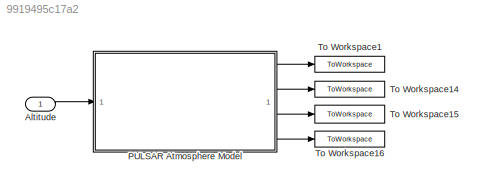
MODEL slx_9919495c17a2
KIND model
CONFIG AbsTol = auto
CONFIG EnableMultiTasking = off
CONFIG FixedStep = auto
CONFIG MaxStep = auto
CONFIG MinStep = auto
CONFIG RelTol = 1e-3
CONFIG SampleTimeConstraint = Unconstrained
CONFIG SolverName = VariableStepAuto
CONFIG StartTime = 0.0
CONFIG StopTime = 10.0
BLOCK [Inport] Altitude
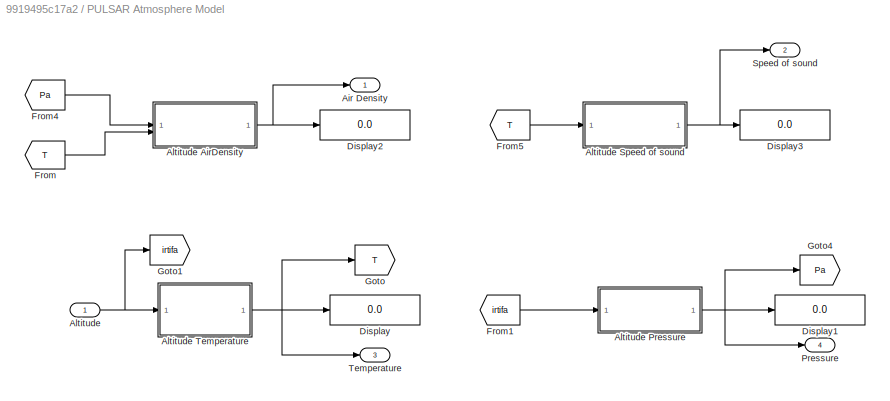
BLOCK [SubSystem] PULSAR Atmosphere Model
BLOCK [Outport] PULSAR Atmosphere Model/Air Density
BLOCK [Inport] PULSAR Atmosphere Model/Altitude
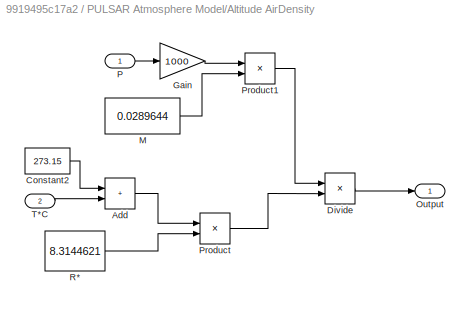
BLOCK [SubSystem] PULSAR Atmosphere Model/Altitude AirDensity
BLOCK [Sum] PULSAR Atmosphere Model/Altitude AirDensity/Add
  IconShape = rectangular
BLOCK [Constant] PULSAR Atmosphere Model/Altitude AirDensity/Constant2
  Value = 273.15
BLOCK [Product] PULSAR Atmosphere Model/Altitude AirDensity/Divide
  Inputs = */
BLOCK [Gain] PULSAR Atmosphere Model/Altitude AirDensity/Gain
  Gain = 1000
BLOCK [Constant] PULSAR Atmosphere Model/Altitude AirDensity/M
  Value = 0.0289644
BLOCK [Outport] PULSAR Atmosphere Model/Altitude AirDensity/Output
BLOCK [Inport] PULSAR Atmosphere Model/Altitude AirDensity/P
BLOCK [Product] PULSAR Atmosphere Model/Altitude AirDensity/Product
BLOCK [Product] PULSAR Atmosphere Model/Altitude AirDensity/Product1
BLOCK [Constant] PULSAR Atmosphere Model/Altitude AirDensity/R*
  Value = 8.3144621
BLOCK [Inport] PULSAR Atmosphere Model/Altitude AirDensity/T*C
  Port = 2
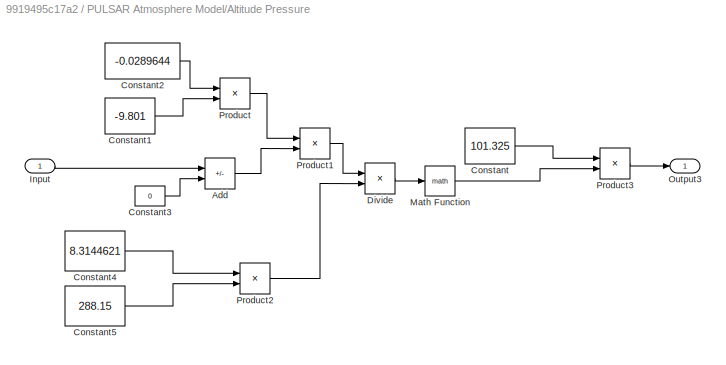
BLOCK [SubSystem] PULSAR Atmosphere Model/Altitude Pressure
BLOCK [Sum] PULSAR Atmosphere Model/Altitude Pressure/Add
  IconShape = rectangular
  Inputs = --
BLOCK [Constant] PULSAR Atmosphere Model/Altitude Pressure/Constant
  Value = 101.325
BLOCK [Constant] PULSAR Atmosphere Model/Altitude Pressure/Constant1
  Value = -9.801
BLOCK [Constant] PULSAR Atmosphere Model/Altitude Pressure/Constant2
  Value = -0.0289644
BLOCK [Constant] PULSAR Atmosphere Model/Altitude Pressure/Constant3
  Value = 0
BLOCK [Constant] PULSAR Atmosphere Model/Altitude Pressure/Constant4
  Value = 8.3144621
BLOCK [Constant] PULSAR Atmosphere Model/Altitude Pressure/Constant5
  Value = 288.15
BLOCK [Product] PULSAR Atmosphere Model/Altitude Pressure/Divide
  Inputs = */
BLOCK [Inport] PULSAR Atmosphere Model/Altitude Pressure/Input
BLOCK [Math] PULSAR Atmosphere Model/Altitude Pressure/Math Function
BLOCK [Outport] PULSAR Atmosphere Model/Altitude Pressure/Output3
BLOCK [Product] PULSAR Atmosphere Model/Altitude Pressure/Product
BLOCK [Product] PULSAR Atmosphere Model/Altitude Pressure/Product1
BLOCK [Product] PULSAR Atmosphere Model/Altitude Pressure/Product2
BLOCK [Product] PULSAR Atmosphere Model/Altitude Pressure/Product3
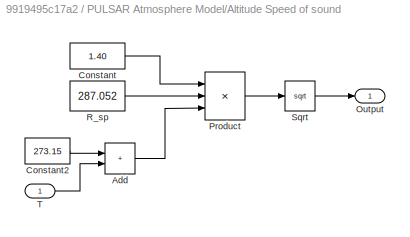
BLOCK [SubSystem] PULSAR Atmosphere Model/Altitude Speed of sound
BLOCK [Sum] PULSAR Atmosphere Model/Altitude Speed of sound/Add
  IconShape = rectangular
BLOCK [Constant] PULSAR Atmosphere Model/Altitude Speed of sound/Constant
  Value = 1.40
BLOCK [Constant] PULSAR Atmosphere Model/Altitude Speed of sound/Constant2
  Value = 273.15
BLOCK [Outport] PULSAR Atmosphere Model/Altitude Speed of sound/Output
BLOCK [Product] PULSAR Atmosphere Model/Altitude Speed of sound/Product
  Inputs = 3
BLOCK [Constant] PULSAR Atmosphere Model/Altitude Speed of sound/R_sp
  Value = 287.052
BLOCK [Sqrt] PULSAR Atmosphere Model/Altitude Speed of sound/Sqrt
BLOCK [Inport] PULSAR Atmosphere Model/Altitude Speed of sound/T
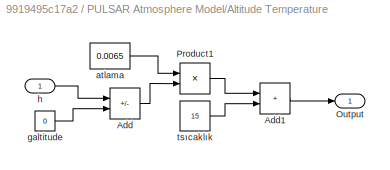
BLOCK [SubSystem] PULSAR Atmosphere Model/Altitude Temperature
BLOCK [Sum] PULSAR Atmosphere Model/Altitude Temperature/Add
  IconShape = rectangular
  Inputs = --
BLOCK [Sum] PULSAR Atmosphere Model/Altitude Temperature/Add1
  IconShape = rectangular
BLOCK [Outport] PULSAR Atmosphere Model/Altitude Temperature/Output
BLOCK [Product] PULSAR Atmosphere Model/Altitude Temperature/Product1
BLOCK [Constant] PULSAR Atmosphere Model/Altitude Temperature/atlama
  Value = 0.0065
BLOCK [Constant] PULSAR Atmosphere Model/Altitude Temperature/galtitude
  Value = 0
BLOCK [Inport] PULSAR Atmosphere Model/Altitude Temperature/h
BLOCK [Constant] PULSAR Atmosphere Model/Altitude Temperature/tsıcaklık
  Value = 15
BLOCK [Display] PULSAR Atmosphere Model/Display
  Decimation = 1
BLOCK [Display] PULSAR Atmosphere Model/Display1
  Decimation = 1
BLOCK [Display] PULSAR Atmosphere Model/Display2
  Decimation = 1
BLOCK [Display] PULSAR Atmosphere Model/Display3
  Decimation = 1
BLOCK [From] PULSAR Atmosphere Model/From
  GotoTag = T
BLOCK [From] PULSAR Atmosphere Model/From1
  GotoTag = irtifa
BLOCK [From] PULSAR Atmosphere Model/From4
  GotoTag = Pa
BLOCK [From] PULSAR Atmosphere Model/From5
  GotoTag = T
BLOCK [Goto] PULSAR Atmosphere Model/Goto
  GotoTag = T
BLOCK [Goto] PULSAR Atmosphere Model/Goto1
  GotoTag = irtifa
BLOCK [Goto] PULSAR Atmosphere Model/Goto4
  GotoTag = Pa
BLOCK [Outport] PULSAR Atmosphere Model/Pressure
  Port = 4
BLOCK [Outport] PULSAR Atmosphere Model/Speed of sound
  Port = 2
BLOCK [Outport] PULSAR Atmosphere Model/Temperature
  Port = 3
BLOCK [ToWorkspace] To Workspace1
  FixptAsFi = on
  MaxDataPoints = inf
  SampleTime = -1
  SaveFormat = Timeseries
  VariableName = p
BLOCK [ToWorkspace] To Workspace14
  FixptAsFi = on
  MaxDataPoints = inf
  SampleTime = -1
  SaveFormat = Timeseries
  VariableName = speedsound
BLOCK [ToWorkspace] To Workspace15
  FixptAsFi = on
  MaxDataPoints = inf
  SampleTime = -1
  SaveFormat = Timeseries
  VariableName = temp
BLOCK [ToWorkspace] To Workspace16
  FixptAsFi = on
  MaxDataPoints = inf
  SampleTime = -1
  SaveFormat = Timeseries
  VariableName = pressure
LINE Altitude:1 -> PULSAR Atmosphere Model:1
LINE PULSAR Atmosphere Model/Altitude AirDensity/Add:1 -> PULSAR Atmosphere Model/Altitude AirDensity/Product:1
LINE PULSAR Atmosphere Model/Altitude AirDensity/Constant2:1 -> PULSAR Atmosphere Model/Altitude AirDensity/Add:1
LINE PULSAR Atmosphere Model/Altitude AirDensity/Divide:1 -> PULSAR Atmosphere Model/Altitude AirDensity/Output:1
LINE PULSAR Atmosphere Model/Altitude AirDensity/Gain:1 -> PULSAR Atmosphere Model/Altitude AirDensity/Product1:1
LINE PULSAR Atmosphere Model/Altitude AirDensity/M:1 -> PULSAR Atmosphere Model/Altitude AirDensity/Product1:2
LINE PULSAR Atmosphere Model/Altitude AirDensity/P:1 -> PULSAR Atmosphere Model/Altitude AirDensity/Gain:1
LINE PULSAR Atmosphere Model/Altitude AirDensity/Product1:1 -> PULSAR Atmosphere Model/Altitude AirDensity/Divide:1
LINE PULSAR Atmosphere Model/Altitude AirDensity/Product:1 -> PULSAR Atmosphere Model/Altitude AirDensity/Divide:2
LINE PULSAR Atmosphere Model/Altitude AirDensity/R*:1 -> PULSAR Atmosphere Model/Altitude AirDensity/Product:2
LINE PULSAR Atmosphere Model/Altitude AirDensity/T*C:1 -> PULSAR Atmosphere Model/Altitude AirDensity/Add:2
NET PULSAR Atmosphere Model/Altitude AirDensity:1 -> PULSAR Atmosphere Model/Air Density:1, PULSAR Atmosphere Model/Display2:1
LINE PULSAR Atmosphere Model/Altitude Pressure/Add:1 -> PULSAR Atmosphere Model/Altitude Pressure/Product1:2
LINE PULSAR Atmosphere Model/Altitude Pressure/Constant1:1 -> PULSAR Atmosphere Model/Altitude Pressure/Product:2
LINE PULSAR Atmosphere Model/Altitude Pressure/Constant2:1 -> PULSAR Atmosphere Model/Altitude Pressure/Product:1
LINE PULSAR Atmosphere Model/Altitude Pressure/Constant3:1 -> PULSAR Atmosphere Model/Altitude Pressure/Add:2
LINE PULSAR Atmosphere Model/Altitude Pressure/Constant4:1 -> PULSAR Atmosphere Model/Altitude Pressure/Product2:1
LINE PULSAR Atmosphere Model/Altitude Pressure/Constant5:1 -> PULSAR Atmosphere Model/Altitude Pressure/Product2:2
LINE PULSAR Atmosphere Model/Altitude Pressure/Constant:1 -> PULSAR Atmosphere Model/Altitude Pressure/Product3:1
LINE PULSAR Atmosphere Model/Altitude Pressure/Divide:1 -> PULSAR Atmosphere Model/Altitude Pressure/Math Function:1
LINE PULSAR Atmosphere Model/Altitude Pressure/Input:1 -> PULSAR Atmosphere Model/Altitude Pressure/Add:1
LINE PULSAR Atmosphere Model/Altitude Pressure/Math Function:1 -> PULSAR Atmosphere Model/Altitude Pressure/Product3:2
LINE PULSAR Atmosphere Model/Altitude Pressure/Product1:1 -> PULSAR Atmosphere Model/Altitude Pressure/Divide:1
LINE PULSAR Atmosphere Model/Altitude Pressure/Product2:1 -> PULSAR Atmosphere Model/Altitude Pressure/Divide:2
LINE PULSAR Atmosphere Model/Altitude Pressure/Product3:1 -> PULSAR Atmosphere Model/Altitude Pressure/Output3:1
LINE PULSAR Atmosphere Model/Altitude Pressure/Product:1 -> PULSAR Atmosphere Model/Altitude Pressure/Product1:1
NET PULSAR Atmosphere Model/Altitude Pressure:1 -> PULSAR Atmosphere Model/Display1:1, PULSAR Atmosphere Model/Goto4:1, PULSAR Atmosphere Model/Pressure:1
LINE PULSAR Atmosphere Model/Altitude Speed of sound/Add:1 -> PULSAR Atmosphere Model/Altitude Speed of sound/Product:3
LINE PULSAR Atmosphere Model/Altitude Speed of sound/Constant2:1 -> PULSAR Atmosphere Model/Altitude Speed of sound/Add:1
LINE PULSAR Atmosphere Model/Altitude Speed of sound/Constant:1 -> PULSAR Atmosphere Model/Altitude Speed of sound/Product:1
LINE PULSAR Atmosphere Model/Altitude Speed of sound/Product:1 -> PULSAR Atmosphere Model/Altitude Speed of sound/Sqrt:1
LINE PULSAR Atmosphere Model/Altitude Speed of sound/R_sp:1 -> PULSAR Atmosphere Model/Altitude Speed of sound/Product:2
LINE PULSAR Atmosphere Model/Altitude Speed of sound/Sqrt:1 -> PULSAR Atmosphere Model/Altitude Speed of sound/Output:1
LINE PULSAR Atmosphere Model/Altitude Speed of sound/T:1 -> PULSAR Atmosphere Model/Altitude Speed of sound/Add:2
NET PULSAR Atmosphere Model/Altitude Speed of sound:1 -> PULSAR Atmosphere Model/Display3:1, PULSAR Atmosphere Model/Speed of sound:1
LINE PULSAR Atmosphere Model/Altitude Temperature/Add1:1 -> PULSAR Atmosphere Model/Altitude Temperature/Output:1
LINE PULSAR Atmosphere Model/Altitude Temperature/Add:1 -> PULSAR Atmosphere Model/Altitude Temperature/Product1:2
LINE PULSAR Atmosphere Model/Altitude Temperature/Product1:1 -> PULSAR Atmosphere Model/Altitude Temperature/Add1:1
LINE PULSAR Atmosphere Model/Altitude Temperature/atlama:1 -> PULSAR Atmosphere Model/Altitude Temperature/Product1:1
LINE PULSAR Atmosphere Model/Altitude Temperature/galtitude:1 -> PULSAR Atmosphere Model/Altitude Temperature/Add:2
LINE PULSAR Atmosphere Model/Altitude Temperature/h:1 -> PULSAR Atmosphere Model/Altitude Temperature/Add:1
LINE PULSAR Atmosphere Model/Altitude Temperature/tsıcaklık:1 -> PULSAR Atmosphere Model/Altitude Temperature/Add1:2
NET PULSAR Atmosphere Model/Altitude Temperature:1 -> PULSAR Atmosphere Model/Display:1, PULSAR Atmosphere Model/Goto:1, PULSAR Atmosphere Model/Temperature:1
NET PULSAR Atmosphere Model/Altitude:1 -> PULSAR Atmosphere Model/Altitude Temperature:1, PULSAR Atmosphere Model/Goto1:1
LINE PULSAR Atmosphere Model/From1:1 -> PULSAR Atmosphere Model/Altitude Pressure:1
LINE PULSAR Atmosphere Model/From4:1 -> PULSAR Atmosphere Model/Altitude AirDensity:1
LINE PULSAR Atmosphere Model/From5:1 -> PULSAR Atmosphere Model/Altitude Speed of sound:1
LINE PULSAR Atmosphere Model/From:1 -> PULSAR Atmosphere Model/Altitude AirDensity:2
LINE PULSAR Atmosphere Model:1 -> To Workspace1:1
LINE PULSAR Atmosphere Model:2 -> To Workspace14:1
LINE PULSAR Atmosphere Model:3 -> To Workspace15:1
LINE PULSAR Atmosphere Model:4 -> To Workspace16:1
note: NET lines group one-source signal fan-out (src -> all destinations, sorted); 1:1 wires keep LINE
